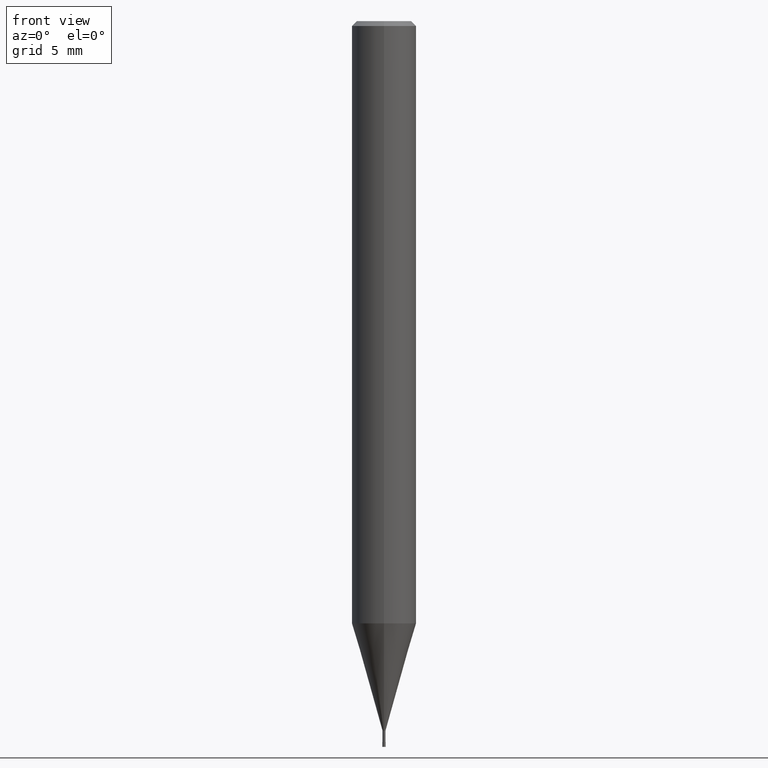
[diagram: clean part render]
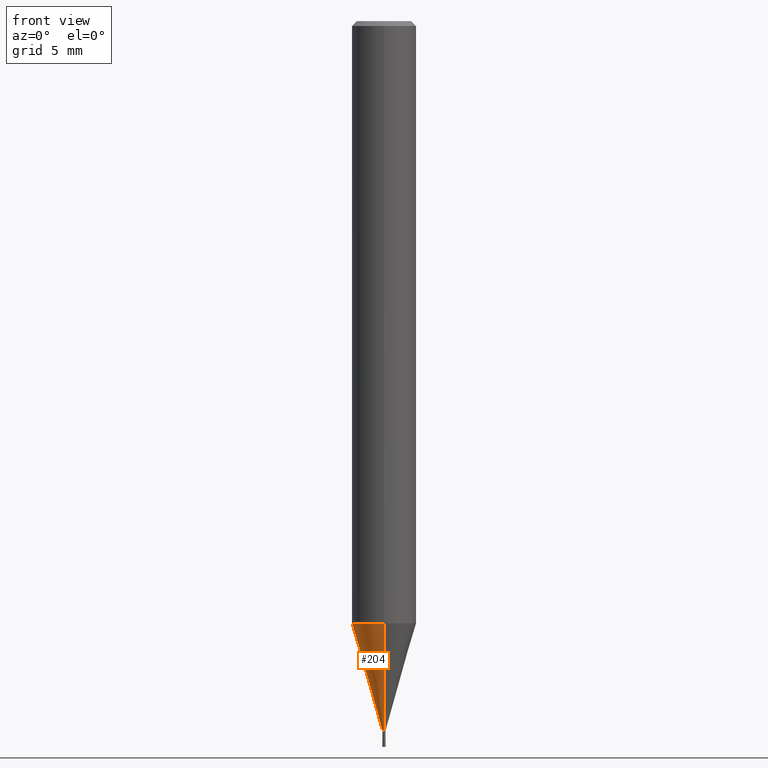
[diagram: same view with one face highlighted and labeled with its STEP entity id]
A machine part, front view. The second image highlights one B-rep face of the part: STEP entity #204.
In plain terms, the highlighted conical surface has half-angle 16 deg.
Its self-contained STEP definition (entity closure, byte-faithful):
#102=VERTEX_POINT('',#241);
#126=EDGE_CURVE('',#102,#128,#268,.T.);
#128=VERTEX_POINT('',#270);
#142=EDGE_CURVE('',#102,#186,#286,.T.);
#176=EDGE_CURVE('',#128,#196,#324,.T.);
#186=VERTEX_POINT('',#334);
#192=EDGE_CURVE('',#196,#186,#341,.T.);
#196=VERTEX_POINT('',#345);
#204=ADVANCED_FACE('',(#355),#356,.T.);
#241=CARTESIAN_POINT('',(1.10153341526323E-017,-0.08995,-44.0));
#268=LINE('',#422,#423);
#270=CARTESIAN_POINT('',(2.44915147732706E-016,-1.99995,-37.339));
#286=CIRCLE('',#443,0.08995);
#324=CIRCLE('',#493,1.99995);
#334=CARTESIAN_POINT('',(0.0,0.08995,-44.0));
#341=LINE('',#517,#518);
#345=CARTESIAN_POINT('',(0.0,1.99995,-37.339));
#355=FACE_OUTER_BOUND('',#533,.T.);
#356=CONICAL_SURFACE('',#534,1.04495,0.279251152364767);
#422=CARTESIAN_POINT('',(1.27965240942669E-016,-1.04495,-40.6695));
#423=VECTOR('',#592,1.0);
#443=AXIS2_PLACEMENT_3D('',#612,#613,#614);
#493=AXIS2_PLACEMENT_3D('',#668,#669,#670);
#517=CARTESIAN_POINT('',(-1.27965240942669E-016,1.04495,-40.6695));
#518=VECTOR('',#685,1.0);
#533=EDGE_LOOP('',(#698,#699,#700,#701));
#534=AXIS2_PLACEMENT_3D('',#702,#703,#704);
#592=DIRECTION('',(3.37545458626217E-017,-0.275635887052711,0.961262117098487));
#612=CARTESIAN_POINT('',(0.0,0.0,-44.0));
#613=DIRECTION('',(0.0,0.0,-1.0));
#614=DIRECTION('',(0.0,1.0,0.0));
#668=CARTESIAN_POINT('',(0.0,0.0,-37.339));
#669=DIRECTION('',(0.0,0.0,-1.0));
#670=DIRECTION('',(0.0,1.0,0.0));
#685=DIRECTION('',(3.37545458626217E-017,-0.275635887052711,-0.961262117098487));
#698=ORIENTED_EDGE('',*,*,#192,.T.);
#699=ORIENTED_EDGE('',*,*,#142,.F.);
#700=ORIENTED_EDGE('',*,*,#126,.T.);
#701=ORIENTED_EDGE('',*,*,#176,.T.);
#702=CARTESIAN_POINT('',(0.0,0.0,-40.6695));
#703=DIRECTION('',(-0.0,-0.0,1.0));
#704=DIRECTION('',(0.0,1.0,0.0));